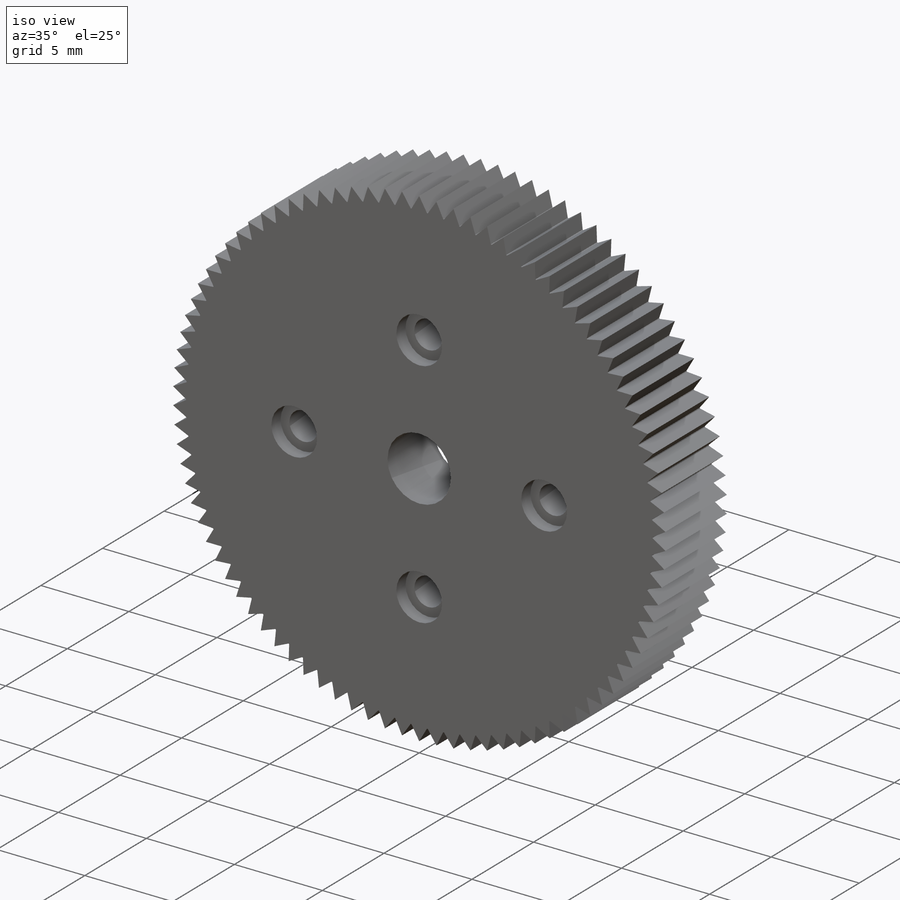
[diagram: iso view]
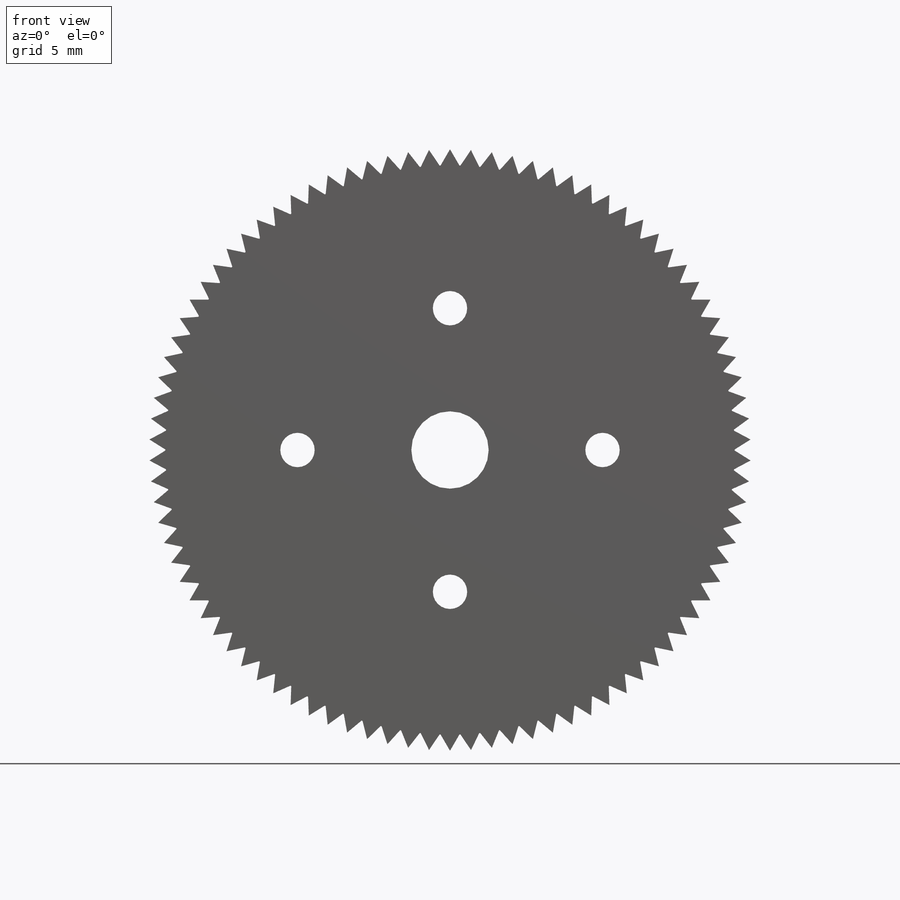
[diagram: front view]
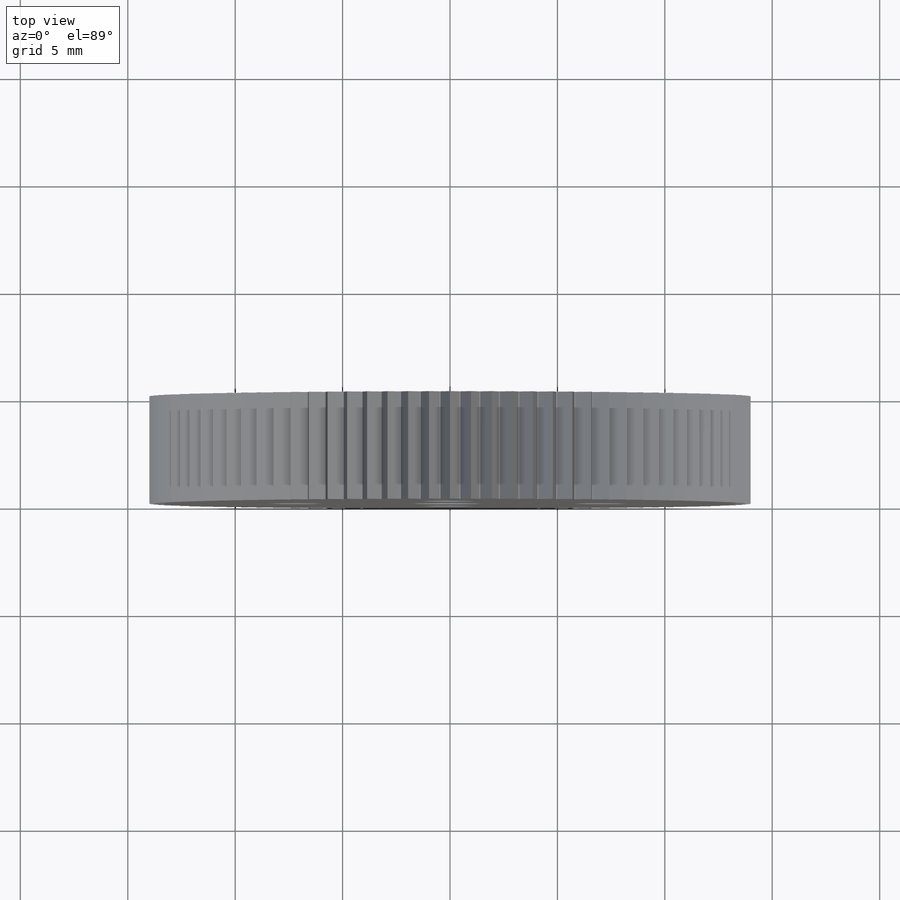
[diagram: top view]
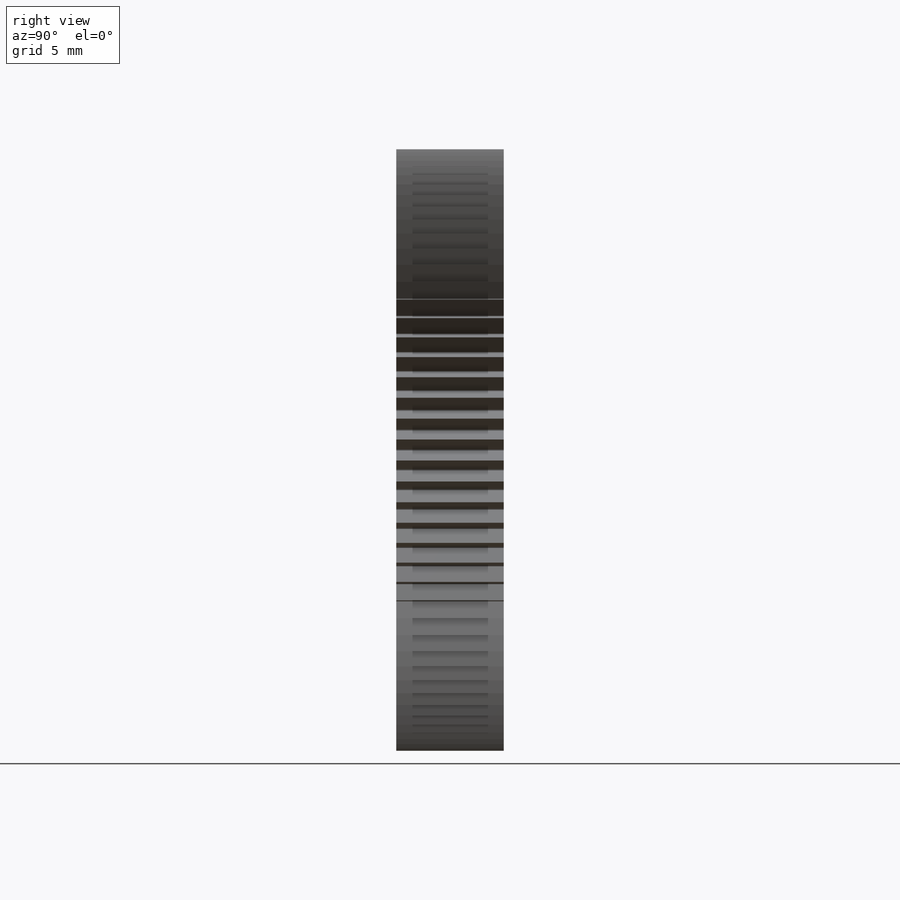
[diagram: right view]
SOLIDWORKS PART (.sldprt)
format: sldprt  version: not decoded by parser v0  size: 645,120 bytes
history: native  units: mm
features: sketch x6, cut_extrude x4, extrude x2, material x1 (+16 scaffold rows collapsed)
feature tree (29):
  scaffold x16  (default folders/planes/origin — collapsed)
  material  "Material <not specified>"
  sketch  "Sketch1"  dims[D1=1.675mm]
  extrude  "Extrude1"  Depth=5mm
  sketch  "Sketch2"  dims[D1=~4.732644mm D2=~4.232644mm]
  cut_extrude  "Extrude2"  Depth=1.2mm
  sketch  "Sketch3"  dims[D1=1.6mm]
  cut_extrude  "Extrude3"  [1 undecoded]
  sketch  "Sketch4"  dims[D1=0.7mm]
  cut_extrude  "Extrude4"  [1 undecoded]
  sketch  "Sketch5"  dims[D1=~1.98134mm]
  cut_extrude  "Extrude5"  Depth=0.75mm
  sketch  "Sketch6"  dims[c1.D1=0.75mm c2.D1=4.0deg]
  extrude  "Extrude6"  [1 undecoded]
decode coverage: 9 of 12 modeling features carry decoded parameters
note: ~ marks probable driven/reference dimensions
note: 3 parameter values undecoded
summary: no parameter record found for 3 features
note: suppression state not decoded; provenance and decode notes live in map.json
